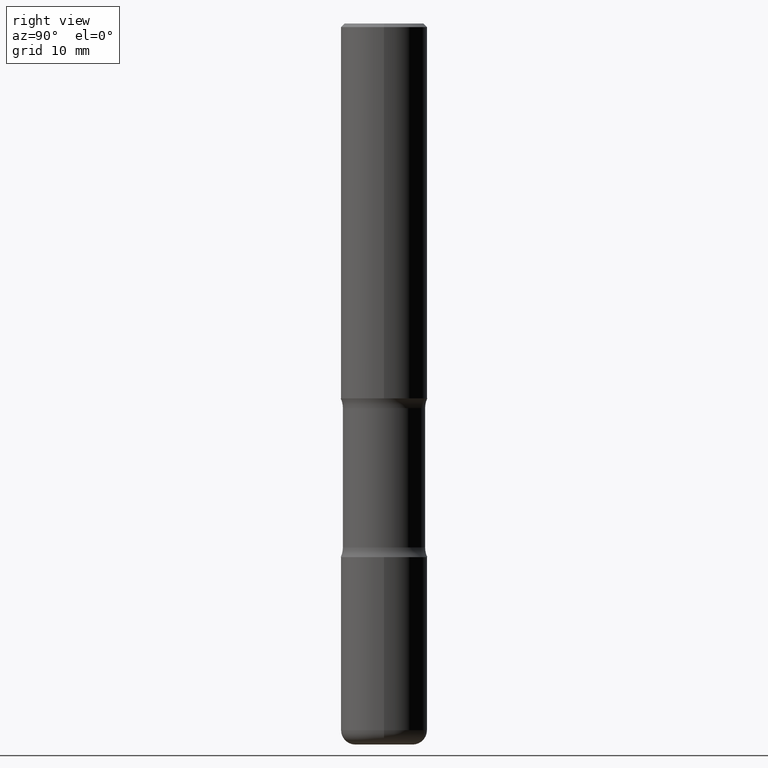
[diagram: clean part render]
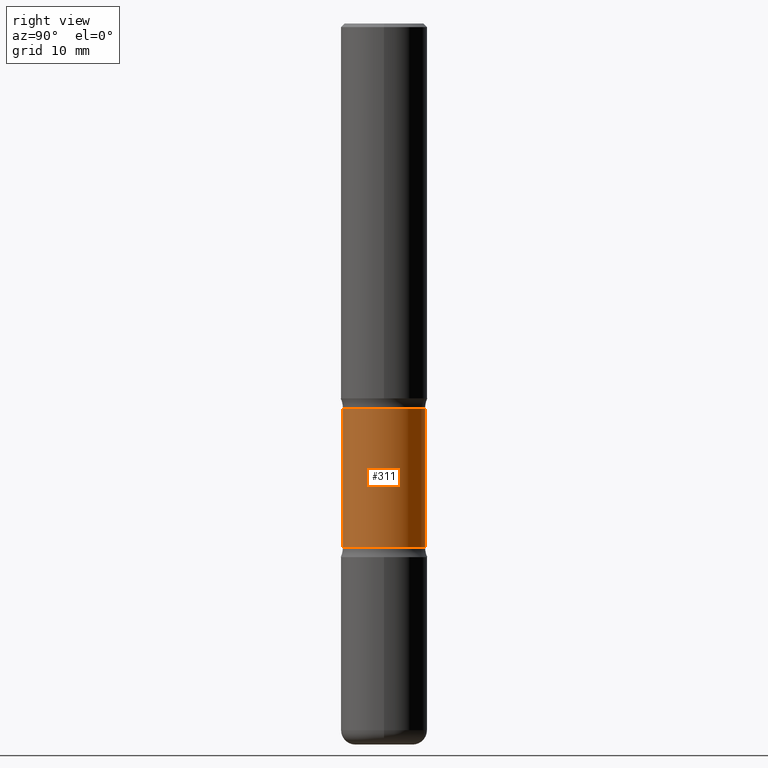
[diagram: same view with one face highlighted and labeled with its STEP entity id]
A machine part, right view. The second image highlights one B-rep face of the part: STEP entity #311.
In plain terms, the highlighted cylindrical surface (partial cylindrical patch) has radius 5.6998 mm, axis along (0, -0, -1).
Its self-contained STEP definition (entity closure, byte-faithful):
#10 = FACE_OUTER_BOUND ( 'NONE', #108, .T. ) ;
#15 = EDGE_CURVE ( 'NONE', #308, #322, #189, .T. ) ;
#26 = DIRECTION ( 'NONE',  ( 2.525985086076564115E-29, -3.376177443336566513E-15, -1.000000000000000000 ) ) ;
#58 = EDGE_CURVE ( 'NONE', #313, #358, #296, .T. ) ;
#62 = DIRECTION ( 'NONE',  ( 6.982962677686265922E-15, 1.000000000000000000, -2.434802133390609815E-15 ) ) ;
#67 = CARTESIAN_POINT ( 'NONE',  ( 9.710227154047748282E-29, -1.362793696358492956E-14, -3.937000000000000277 ) ) ;
#75 = EDGE_CURVE ( 'NONE', #322, #358, #553, .T. ) ;
#102 = LINE ( 'NONE', #449, #403 ) ;
#108 = EDGE_LOOP ( 'NONE', ( #281, #487, #236, #328 ) ) ;
#129 = DIRECTION ( 'NONE',  ( 6.982962677686265922E-15, 1.000000000000000000, -3.652203200085913934E-15 ) ) ;
#168 = CARTESIAN_POINT ( 'NONE',  ( 5.070539682259229331E-29, -7.426630284172150130E-15, -2.100216601173595432 ) ) ;
#174 = CARTESIAN_POINT ( 'NONE',  ( -1.539495750699834052E-15, -0.2244000000000135608, -3.936999999999999389 ) ) ;
#179 = CARTESIAN_POINT ( 'NONE',  ( -1.579972688886713168E-15, -0.2244000000000099804, -2.860383398826404466 ) ) ;
#189 = CIRCLE ( 'NONE', #511, 0.2243999999999999606 ) ;
#193 = CYLINDRICAL_SURFACE ( 'NONE', #234, 0.2243999999999999329 ) ;
#200 = CARTESIAN_POINT ( 'NONE',  ( 1.566976824872867821E-15, 0.2243999999999899686, -2.860383398826405799 ) ) ;
#227 = AXIS2_PLACEMENT_3D ( 'NONE', #338, #505, #514 ) ;
#234 = AXIS2_PLACEMENT_3D ( 'NONE', #67, #26, #62 ) ;
#236 = ORIENTED_EDGE ( 'NONE', *, *, #58, .F. ) ;
#281 = ORIENTED_EDGE ( 'NONE', *, *, #15, .T. ) ;
#296 = CIRCLE ( 'NONE', #227, 0.2243999999999999606 ) ;
#308 = VERTEX_POINT ( 'NONE', #443 ) ;
#311 = ADVANCED_FACE ( 'NONE', ( #10 ), #193, .T. ) ;
#313 = VERTEX_POINT ( 'NONE', #200 ) ;
#322 = VERTEX_POINT ( 'NONE', #329 ) ;
#328 = ORIENTED_EDGE ( 'NONE', *, *, #529, .F. ) ;
#329 = CARTESIAN_POINT ( 'NONE',  ( -1.579972688886734072E-15, -0.2244000000000073713, -2.100216601173594544 ) ) ;
#338 = CARTESIAN_POINT ( 'NONE',  ( 6.990709676060807691E-29, -9.993088279580958225E-15, -2.860383398826405354 ) ) ;
#358 = VERTEX_POINT ( 'NONE', #179 ) ;
#403 = VECTOR ( 'NONE', #523, 39.37007874015748143 ) ;
#443 = CARTESIAN_POINT ( 'NONE',  ( 1.566976824872848494E-15, 0.2243999999999925499, -2.100216601173596320 ) ) ;
#449 = CARTESIAN_POINT ( 'NONE',  ( 1.566976824872894642E-15, 0.2243999999999863049, -3.937000000000000721 ) ) ;
#487 = ORIENTED_EDGE ( 'NONE', *, *, #75, .T. ) ;
#505 = DIRECTION ( 'NONE',  ( 2.525985086076564115E-29, -3.376177443336566513E-15, -1.000000000000000000 ) ) ;
#507 = DIRECTION ( 'NONE',  ( 2.525985086076564115E-29, -3.376177443336566513E-15, -1.000000000000000000 ) ) ;
#511 = AXIS2_PLACEMENT_3D ( 'NONE', #168, #547, #129 ) ;
#514 = DIRECTION ( 'NONE',  ( 6.982962677686265922E-15, 1.000000000000000000, -2.434802133390609421E-15 ) ) ;
#523 = DIRECTION ( 'NONE',  ( 2.525985086076564115E-29, -3.376177443336566513E-15, -1.000000000000000000 ) ) ;
#529 = EDGE_CURVE ( 'NONE', #308, #313, #102, .T. ) ;
#531 = VECTOR ( 'NONE', #507, 39.37007874015748143 ) ;
#547 = DIRECTION ( 'NONE',  ( 2.525985086076564115E-29, -3.376177443336566513E-15, -1.000000000000000000 ) ) ;
#553 = LINE ( 'NONE', #174, #531 ) ;